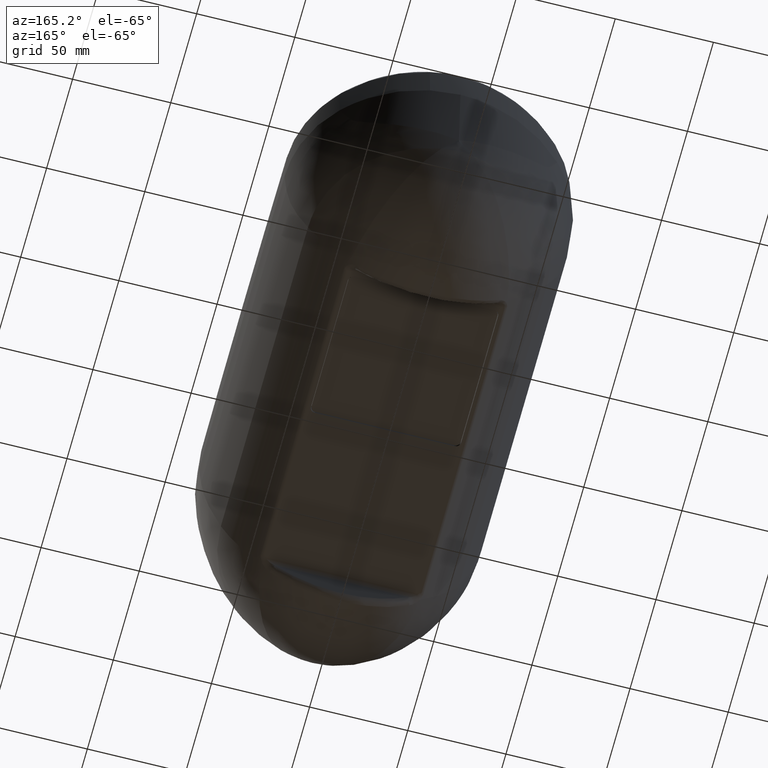
[diagram: clean part render]
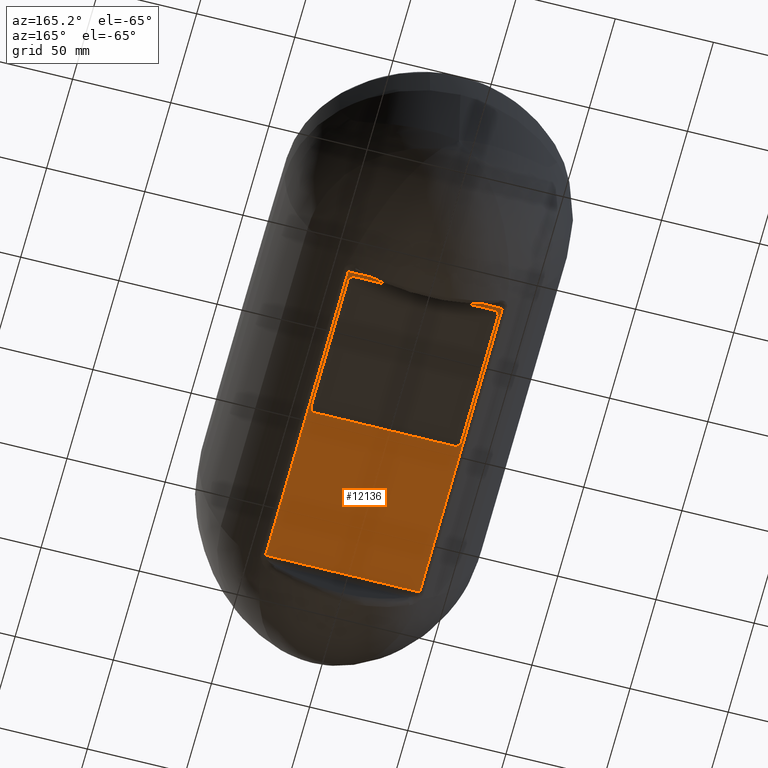
[diagram: same view with one face highlighted and labeled with its STEP entity id]
A machine part, auxiliary view. The second image highlights one B-rep face of the part: STEP entity #12136.
In plain terms, the highlighted planar face has unit normal (-0, -0, 1).
Its self-contained STEP definition (entity closure, byte-faithful):
#94 = CARTESIAN_POINT ( 'NONE',  ( -38.22855776466273880, 118.5000000000006395, 90.99999999999863576 ) ) ;
#144 = AXIS2_PLACEMENT_3D ( 'NONE', #13925, #3033, #4373 ) ;
#230 = EDGE_CURVE ( 'Defeatured_1_18+Defeatured_1_31+Defeatured_1_17+Defeatured_1_11', #6773, #10256, #4865, .T. ) ;
#883 = VECTOR ( 'NONE', #6836, 1000.000000000000000 ) ;
#1124 = CARTESIAN_POINT ( 'NONE',  ( 35.50000000000001421, 44.77144223529294464, 90.99999999999860734 ) ) ;
#1215 = CARTESIAN_POINT ( 'NONE',  ( -39.25585139247299082, 123.0801866950056223, 90.99999999999910472 ) ) ;
#1640 = DIRECTION ( 'NONE',  ( -2.465190328815662439E-32, -1.000000000000000000, -4.287526199837192785E-16 ) ) ;
#1941 = DIRECTION ( 'NONE',  ( -2.465190328815662439E-32, -1.000000000000000000, -4.287526199837192785E-16 ) ) ;
#1969 = EDGE_CURVE ( 'Defeatured_1_71+Defeatured_1_31+Defeatured_1_72+Defeatured_1_70', #13476, #13413, #8641, .T. ) ;
#2031 = DIRECTION ( 'NONE',  ( -1.000000000000000000, 5.007417855406813218E-32, -5.551115123125782702E-17 ) ) ;
#2198 = LINE ( 'NONE', #11900, #5192 ) ;
#2270 = EDGE_CURVE ( 'Defeatured_1_11+Defeatured_1_31+Defeatured_1_18+Defeatured_1_12', #10256, #12816, #10215, .T. ) ;
#2377 = DIRECTION ( 'NONE',  ( -2.465190328815662439E-32, -1.000000000000000000, -4.287526199837192785E-16 ) ) ;
#2454 = PLANE ( 'NONE',  #5207 ) ;
#2505 = EDGE_CURVE ( 'Defeatured_1_14+Defeatured_1_31+Defeatured_1_13+Defeatured_1_15', #7593, #8429, #13804, .T. ) ;
#2528 = CARTESIAN_POINT ( 'NONE',  ( -35.50000000000000711, 121.2285577647085546, 90.99999999999886313 ) ) ;
#2807 = DIRECTION ( 'NONE',  ( 5.551115123125782702E-17, 4.287526199837192785E-16, -1.000000000000000000 ) ) ;
#2835 = CARTESIAN_POINT ( 'NONE',  ( -39.25585139247299082, -104.0790243500523076, 90.99999999999900524 ) ) ;
#2946 = CARTESIAN_POINT ( 'NONE',  ( 38.22855776470765932, 47.50000000000065370, 90.99999999999883471 ) ) ;
#3033 = DIRECTION ( 'NONE',  ( 5.551115123125782702E-17, 4.287526199837192785E-16, -1.000000000000000000 ) ) ;
#3110 = ORIENTED_EDGE ( 'NONE', *, *, #6345, .F. ) ;
#3132 = VECTOR ( 'NONE', #1941, 1000.000000000000000 ) ;
#3194 = DIRECTION ( 'NONE',  ( 2.465190328815662439E-32, 1.000000000000000000, 4.287526199837192785E-16 ) ) ;
#3613 = ORIENTED_EDGE ( 'NONE', *, *, #12291, .F. ) ;
#3632 = DIRECTION ( 'NONE',  ( -5.551115123125782702E-17, -4.287526199837192785E-16, 1.000000000000000000 ) ) ;
#3715 = DIRECTION ( 'NONE',  ( 5.551115123125782702E-17, 4.287526199837192785E-16, -1.000000000000000000 ) ) ;
#4057 = CARTESIAN_POINT ( 'NONE',  ( 35.50000000000001421, 118.5000000000006395, 90.99999999999863576 ) ) ;
#4083 = LINE ( 'NONE', #10313, #11043 ) ;
#4138 = CARTESIAN_POINT ( 'NONE',  ( -38.22855776470759537, 47.50000000000065370, 90.99999999999883471 ) ) ;
#4373 = DIRECTION ( 'NONE',  ( 0.0000000000000000000, 1.000000000000000000, 0.0000000000000000000 ) ) ;
#4456 = CARTESIAN_POINT ( 'NONE',  ( 35.50000000000001421, 121.2285577646644867, 90.99999999999863576 ) ) ;
#4705 = CIRCLE ( 'NONE', #13600, 2.728557764618652737 ) ;
#4824 = ORIENTED_EDGE ( 'NONE', *, *, #1969, .F. ) ;
#4865 = CIRCLE ( 'NONE', #15549, 2.728557764618652737 ) ;
#5192 = VECTOR ( 'NONE', #2031, 1000.000000000000000 ) ;
#5207 = AXIS2_PLACEMENT_3D ( 'NONE', #13190, #3632, #2377 ) ;
#5753 = ORIENTED_EDGE ( 'NONE', *, *, #6554, .T. ) ;
#5932 = ORIENTED_EDGE ( 'NONE', *, *, #12326, .F. ) ;
#6183 = CARTESIAN_POINT ( 'NONE',  ( 39.25585139247306188, 123.0801866950056223, 90.99999999999910472 ) ) ;
#6345 = EDGE_CURVE ( 'Defeatured_1_17+Defeatured_1_31+Defeatured_1_16+Defeatured_1_18', #12297, #6773, #4083, .T. ) ;
#6457 = VERTEX_POINT ( 'NONE', #10612 ) ;
#6483 = LINE ( 'NONE', #7357, #8769 ) ;
#6554 = EDGE_CURVE ( 'Defeatured_1_31+Defeatured_1_32+Defeatured_1_77+Defeatured_1_71', #6457, #13413, #2198, .T. ) ;
#6773 = VERTEX_POINT ( 'NONE', #4456 ) ;
#6829 = EDGE_CURVE ( 'Defeatured_1_30+Defeatured_1_31+Defeatured_1_76+Defeatured_1_72', #14641, #13476, #11861, .T. ) ;
#6836 = DIRECTION ( 'NONE',  ( -1.000000000000000000, 5.007417855406813218E-32, -5.551115123125782702E-17 ) ) ;
#6939 = CARTESIAN_POINT ( 'NONE',  ( -35.50000000000000000, 44.77144223533771594, 90.99999999999860734 ) ) ;
#6943 = AXIS2_PLACEMENT_3D ( 'NONE', #13098, #10943, #14521 ) ;
#7129 = ORIENTED_EDGE ( 'NONE', *, *, #8416, .F. ) ;
#7357 = CARTESIAN_POINT ( 'NONE',  ( -38.22855776470760247, 125.9270803951506252, 90.99999999999910472 ) ) ;
#7593 = VERTEX_POINT ( 'NONE', #6939 ) ;
#7719 = ORIENTED_EDGE ( 'NONE', *, *, #2270, .F. ) ;
#7746 = EDGE_CURVE ( 'Defeatured_1_12+Defeatured_1_31+Defeatured_1_11+Defeatured_1_13', #12816, #9132, #13100, .T. ) ;
#7802 = EDGE_CURVE ( 'Defeatured_1_77+Defeatured_1_31+Defeatured_1_78+Defeatured_1_76', #6457, #14641, #9330, .T. ) ;
#8050 = ORIENTED_EDGE ( 'NONE', *, *, #230, .F. ) ;
#8129 = VERTEX_POINT ( 'NONE', #94 ) ;
#8416 = EDGE_CURVE ( 'Defeatured_1_13+Defeatured_1_31+Defeatured_1_12+Defeatured_1_14', #9132, #7593, #8767, .T. ) ;
#8429 = VERTEX_POINT ( 'NONE', #4138 ) ;
#8641 = LINE ( 'NONE', #2835, #14305 ) ;
#8767 = LINE ( 'NONE', #14796, #10504 ) ;
#8769 = VECTOR ( 'NONE', #10009, 1000.000000000000000 ) ;
#9021 = CARTESIAN_POINT ( 'NONE',  ( 38.22855776470760958, 125.9270803951506252, 90.99999999999910472 ) ) ;
#9132 = VERTEX_POINT ( 'NONE', #1124 ) ;
#9330 = LINE ( 'NONE', #11943, #11833 ) ;
#9865 = ORIENTED_EDGE ( 'NONE', *, *, #2505, .F. ) ;
#10009 = DIRECTION ( 'NONE',  ( 2.465190328815662439E-32, 1.000000000000000000, 4.287526199837192785E-16 ) ) ;
#10132 = DIRECTION ( 'NONE',  ( 0.0000000000000000000, 1.000000000000000000, 0.0000000000000000000 ) ) ;
#10215 = LINE ( 'NONE', #9021, #3132 ) ;
#10256 = VERTEX_POINT ( 'NONE', #14896 ) ;
#10313 = CARTESIAN_POINT ( 'NONE',  ( -99.99999999999998579, 121.2285577647086399, 90.99999999999907629 ) ) ;
#10441 = CARTESIAN_POINT ( 'NONE',  ( -39.25585139247299082, -36.22602590470483364, 90.99999999999901945 ) ) ;
#10504 = VECTOR ( 'NONE', #13619, 1000.000000000000000 ) ;
#10611 = ORIENTED_EDGE ( 'NONE', *, *, #7802, .F. ) ;
#10612 = CARTESIAN_POINT ( 'NONE',  ( 39.25585139247306188, -36.22602590470483364, 90.99999999999901945 ) ) ;
#10801 = FACE_OUTER_BOUND ( 'NONE', #14211, .T. ) ;
#10943 = DIRECTION ( 'NONE',  ( 5.551115123125782702E-17, 4.287526199837192785E-16, -1.000000000000000000 ) ) ;
#11043 = VECTOR ( 'NONE', #13806, 1000.000000000000000 ) ;
#11602 = ORIENTED_EDGE ( 'NONE', *, *, #6829, .F. ) ;
#11714 = ORIENTED_EDGE ( 'NONE', *, *, #7746, .F. ) ;
#11833 = VECTOR ( 'NONE', #3194, 1000.000000000000000 ) ;
#11861 = LINE ( 'NONE', #14162, #883 ) ;
#11900 = CARTESIAN_POINT ( 'NONE',  ( -99.99999999999998579, -36.22602590470483364, 90.99999999999901945 ) ) ;
#11943 = CARTESIAN_POINT ( 'NONE',  ( 39.25585139247309741, 125.9270803951506252, 90.99999999999910472 ) ) ;
#12136 = ADVANCED_FACE ( 'Defeatured_1_31', ( #13109, #10801 ), #2454, .F. ) ;
#12291 = EDGE_CURVE ( 'Defeatured_1_16+Defeatured_1_31+Defeatured_1_15+Defeatured_1_17', #8129, #12297, #4705, .T. ) ;
#12297 = VERTEX_POINT ( 'NONE', #2528 ) ;
#12326 = EDGE_CURVE ( 'Defeatured_1_15+Defeatured_1_31+Defeatured_1_14+Defeatured_1_16', #8429, #8129, #6483, .T. ) ;
#12816 = VERTEX_POINT ( 'NONE', #2946 ) ;
#13098 = CARTESIAN_POINT ( 'NONE',  ( -35.50000000000000000, 47.50000000000065370, 90.99999999999860734 ) ) ;
#13100 = CIRCLE ( 'NONE', #144, 2.728557764618930292 ) ;
#13109 = FACE_BOUND ( 'NONE', #13550, .T. ) ;
#13190 = CARTESIAN_POINT ( 'NONE',  ( -99.99999999999998579, 125.9270803951506252, 90.99999999999910472 ) ) ;
#13413 = VERTEX_POINT ( 'NONE', #10441 ) ;
#13426 = CARTESIAN_POINT ( 'NONE',  ( -35.50000000000000000, 118.5000000000006395, 90.99999999999863576 ) ) ;
#13476 = VERTEX_POINT ( 'NONE', #1215 ) ;
#13493 = DIRECTION ( 'NONE',  ( 0.0000000000000000000, 1.000000000000000000, 0.0000000000000000000 ) ) ;
#13550 = EDGE_LOOP ( 'NONE', ( #8050, #3110, #3613, #5932, #9865, #7129, #11714, #7719 ) ) ;
#13600 = AXIS2_PLACEMENT_3D ( 'NONE', #13426, #3715, #13493 ) ;
#13619 = DIRECTION ( 'NONE',  ( -1.000000000000000000, 5.007417855406813218E-32, -5.551115123125782702E-17 ) ) ;
#13804 = CIRCLE ( 'NONE', #6943, 2.728557764618930292 ) ;
#13806 = DIRECTION ( 'NONE',  ( 1.000000000000000000, -5.007417855406813218E-32, 5.551115123125782702E-17 ) ) ;
#13925 = CARTESIAN_POINT ( 'NONE',  ( 35.50000000000001421, 47.50000000000065370, 90.99999999999860734 ) ) ;
#14162 = CARTESIAN_POINT ( 'NONE',  ( -99.99999999999998579, 123.0801866950056223, 90.99999999999910472 ) ) ;
#14211 = EDGE_LOOP ( 'NONE', ( #10611, #5753, #4824, #11602 ) ) ;
#14305 = VECTOR ( 'NONE', #1640, 1000.000000000000000 ) ;
#14521 = DIRECTION ( 'NONE',  ( 0.0000000000000000000, 1.000000000000000000, 0.0000000000000000000 ) ) ;
#14641 = VERTEX_POINT ( 'NONE', #6183 ) ;
#14796 = CARTESIAN_POINT ( 'NONE',  ( -99.99999999999998579, 44.77144223529266753, 90.99999999999904787 ) ) ;
#14896 = CARTESIAN_POINT ( 'NONE',  ( 38.22855776470757405, 118.5000000000006395, 90.99999999999886313 ) ) ;
#15549 = AXIS2_PLACEMENT_3D ( 'NONE', #4057, #2807, #10132 ) ;